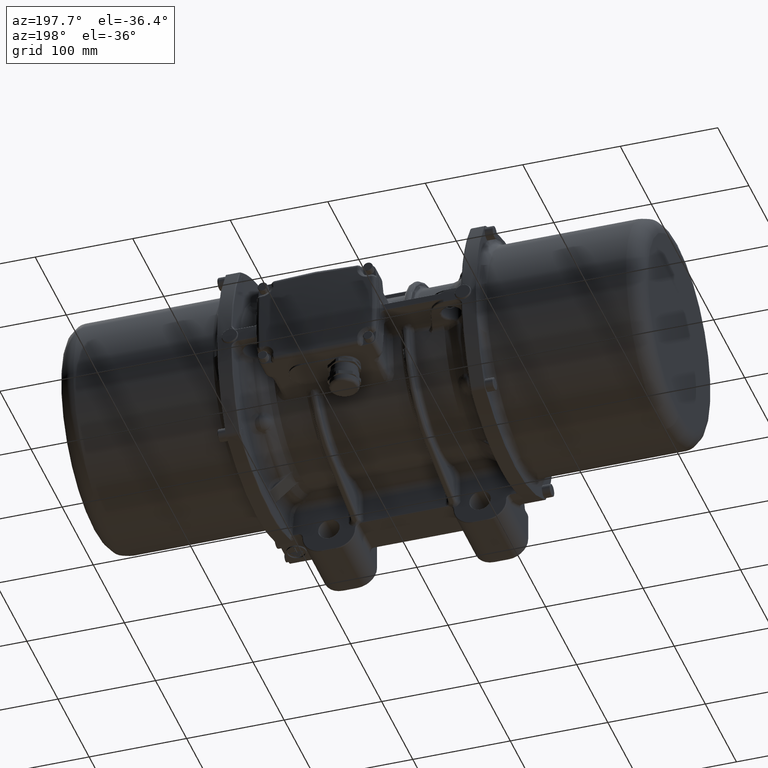
[diagram: clean part render]
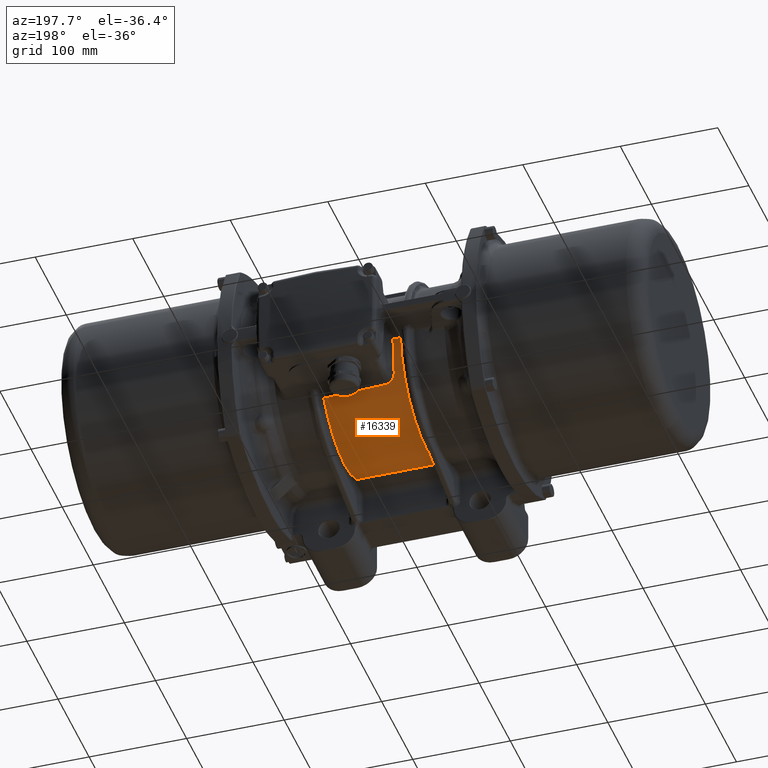
[diagram: same view with one face highlighted and labeled with its STEP entity id]
A machine part, auxiliary view. The second image highlights one B-rep face of the part: STEP entity #16339.
In plain terms, the highlighted cylindrical surface (partial cylindrical patch) has radius 85 mm, axis along (-1, -0, 0).
Its self-contained STEP definition (entity closure, byte-faithful):
#22 = FACE_OUTER_BOUND ( 'NONE', #86656, .T. ) ;
#2832 = CARTESIAN_POINT ( 'NONE',  ( 10.18343553623218200, 67.78974197960712900, -51.27914773793213500 ) ) ;
#2906 = VERTEX_POINT ( 'NONE', #56555 ) ;
#3301 = CARTESIAN_POINT ( 'NONE',  ( 36.65626816226830400, 67.67017360980612800, -51.43700835952419200 ) ) ;
#4397 = CARTESIAN_POINT ( 'NONE',  ( -42.00000000000000000, 2.830652379159914700E-010, -5.417949075492423100E-010 ) ) ;
#4665 = CARTESIAN_POINT ( 'NONE',  ( 7.527752827561331000, 67.83416215010944900, -51.22048678093944600 ) ) ;
#4985 = CARTESIAN_POINT ( 'NONE',  ( -32.38844504999999400, 74.70326170094387000, -40.55148198596950900 ) ) ;
#5434 = CARTESIAN_POINT ( 'NONE',  ( -30.14287114500000800, 71.54544900199999800, -45.89469439699999500 ) ) ;
#5499 = VECTOR ( 'NONE', #41479, 1000.000000000000000 ) ;
#5877 = CARTESIAN_POINT ( 'NONE',  ( -31.67957175800000500, 73.10252652699999500, -43.37505449499999300 ) ) ;
#6355 = CARTESIAN_POINT ( 'NONE',  ( -32.32756473099999500, 74.38669384200000000, -41.13465800000000200 ) ) ;
#7038 = EDGE_CURVE ( 'NONE', #93936, #72338, #30839, .T. ) ;
#7735 = CARTESIAN_POINT ( 'NONE',  ( -34.01401181292610000, 82.74155070506032000, -19.51610667945691100 ) ) ;
#9559 = CARTESIAN_POINT ( 'NONE',  ( -33.90272848024739000, 82.21438940699400200, -21.59409254125847300 ) ) ;
#10038 = CYLINDRICAL_SURFACE ( 'NONE', #84340, 84.99999999954383200 ) ;
#13613 = CARTESIAN_POINT ( 'NONE',  ( 10.47652214207446200, 67.78484325270552800, -51.28562368769664200 ) ) ;
#13739 = EDGE_CURVE ( 'NONE', #125535, #27281, #82179, .T. ) ;
#14081 = CARTESIAN_POINT ( 'NONE',  ( -3.358281747558900400, 68.10201339758390300, -50.86408479365256600 ) ) ;
#14983 = CARTESIAN_POINT ( 'NONE',  ( -6.145920619626206600, 68.18748043438780800, -50.74946498007519600 ) ) ;
#15634 = DIRECTION ( 'NONE',  ( 1.000000000000000000, 0.0000000000000000000, -0.0000000000000000000 ) ) ;
#15753 = CARTESIAN_POINT ( 'NONE',  ( -22.88448369900000000, 68.84543242199998800, -49.85287848299999100 ) ) ;
#16211 = CARTESIAN_POINT ( 'NONE',  ( -25.84765263900000000, 69.41536443500001500, -49.05644348299999500 ) ) ;
#16339 = ADVANCED_FACE ( 'NONE', ( #22 ), #10038, .T. ) ;
#17577 = EDGE_CURVE ( 'NONE', #93226, #93936, #40949, .T. ) ;
#17912 = VERTEX_POINT ( 'NONE', #87148 ) ;
#18773 = EDGE_CURVE ( 'NONE', #64168, #17912, #56395, .T. ) ;
#18780 = CARTESIAN_POINT ( 'NONE',  ( 42.00000000000000000, 2.830652379159914700E-010, -5.417949075492423100E-010 ) ) ;
#19261 = CARTESIAN_POINT ( 'NONE',  ( 42.00000000000000000, 8.845146837188622200E-010, -3.283588678737459100E-010 ) ) ;
#19842 = CARTESIAN_POINT ( 'NONE',  ( -32.90891703093009800, 77.37396894477505800, -35.30077366396736900 ) ) ;
#24233 = CARTESIAN_POINT ( 'NONE',  ( 3.519168112680476100, 67.92126990419704700, -51.10499847767423600 ) ) ;
#24700 = CARTESIAN_POINT ( 'NONE',  ( 41.99999999666408700, 67.74501460766585100, -51.33822193058750800 ) ) ;
#25161 = CARTESIAN_POINT ( 'NONE',  ( -5.642455864213274300, 68.17152837046370500, -50.77089225224765600 ) ) ;
#25619 = CARTESIAN_POINT ( 'NONE',  ( 9.963616175069120100, 67.79346275613397700, -51.27422886764176000 ) ) ;
#26819 = CARTESIAN_POINT ( 'NONE',  ( -30.33170296600000200, 71.69720022100001700, -45.65735479099999600 ) ) ;
#27281 = VERTEX_POINT ( 'NONE', #73848 ) ;
#27741 = CARTESIAN_POINT ( 'NONE',  ( -25.53340074500000200, 69.32716991600000300, -49.18091122700000300 ) ) ;
#27758 = DIRECTION ( 'NONE',  ( 1.000000000000000000, 0.0000000000000000000, -0.0000000000000000000 ) ) ;
#30058 = CARTESIAN_POINT ( 'NONE',  ( -34.08079022050649300, 83.05568393293776800, -18.13123029110487000 ) ) ;
#30839 = B_SPLINE_CURVE_WITH_KNOTS ( 'NONE', 3,
 ( #113601, #15753, #90339, #70716, #37586, #27741, #16211, #70256, #133689, #124322, #38973, #122523, #90778, #59972, #60433, #5434, #26819, #101481, #68899, #5877, #47887, #58596, #6355, #4985 ),
 .UNSPECIFIED., .F., .F.,
 ( 4, 2, 2, 2, 2, 2, 2, 2, 2, 2, 2, 4 ),
 ( 0.0000000000000000000, 0.1249999999999997600, 0.1874999999999992800, 0.2499999999999994200, 0.3749999999999992200, 0.4374999999999986700, 0.4999999999999989500, 0.5624999999999983300, 0.6249999999999955600, 0.7499999999999972200, 0.8749999999999984500, 1.000000000000000000 ),
 .UNSPECIFIED. ) ;
#34080 = ORIENTED_EDGE ( 'NONE', *, *, #7038, .F. ) ;
#34946 = CARTESIAN_POINT ( 'NONE',  ( -18.03135831589894500, 68.62640931575778300, -50.15432508562475500 ) ) ;
#36336 = CARTESIAN_POINT ( 'NONE',  ( 19.26599375099243600, 67.67099646385474900, -51.43606567247891100 ) ) ;
#37357 = CIRCLE ( 'NONE', #72323, 84.99999999954383200 ) ;
#37586 = CARTESIAN_POINT ( 'NONE',  ( -24.88991697099999800, 69.16934366300000600, -49.40263570800000500 ) ) ;
#38973 = CARTESIAN_POINT ( 'NONE',  ( -28.37583217599999900, 70.42059032400000300, -47.60249252300000200 ) ) ;
#40765 = CARTESIAN_POINT ( 'NONE',  ( -42.00000000000000000, 84.57393215393132400, -8.500000000007899500 ) ) ;
#40804 = CARTESIAN_POINT ( 'NONE',  ( -33.77128739273127400, 81.58820536630408100, -23.84518383961886600 ) ) ;
#40949 = B_SPLINE_CURVE_WITH_KNOTS ( 'NONE', 3,
 ( #24700, #3301, #56028, #36336, #89132, #130582, #120385, #13613, #2832, #120850, #25619, #67676, #111008, #121777, #77469, #109612, #78831, #4665, #24233, #45729, #56482, #77910, #14081, #109140, #98879, #25161, #47125, #88680, #99794, #57855, #99332, #132454, #14983, #66742, #56960, #34946, #78368, #98417 ),
 .UNSPECIFIED., .F., .F.,
 ( 4, 1, 1, 1, 1, 1, 1, 1, 1, 1, 1, 1, 2, 2, 2, 2, 2, 1, 1, 1, 1, 1, 1, 1, 2, 2, 2, 4 ),
 ( 0.0000000000000000000, 0.2500000000002479700, 0.3750000000003719200, 0.4375000000004339300, 0.4687500000004650200, 0.4843750000004805000, 0.4921875000004882800, 0.4960937500004921600, 0.4980468750004941000, 0.4990234375004950500, 0.4995117187504954900, 0.4997558593754957700, 0.4998779296879958800, 0.5000000000004960500, 0.6250000000003765900, 0.6875000000003168600, 0.7187500000002869900, 0.7343750000002721200, 0.7421875000002646800, 0.7460937500002610100, 0.7480468750002591300, 0.7490234375002582400, 0.7495117187502576800, 0.7497558593752574600, 0.7498779296877573500, 0.7500000000002572400, 0.8750000000001286700, 1.000000000000000000 ),
 .UNSPECIFIED. ) ;
#41479 = DIRECTION ( 'NONE',  ( 1.000000000000000000, -0.0000000000000000000, -0.0000000000000000000 ) ) ;
#43065 = B_SPLINE_CURVE_WITH_KNOTS ( 'NONE', 3,
 ( #125245, #61355, #135962, #30058, #7735, #9559, #60900, #40804, #71635, #115448, #73026, #51111, #126172, #104216, #105148, #62288, #19842, #94882, #72106 ),
 .UNSPECIFIED., .F., .F.,
 ( 4, 2, 2, 1, 1, 1, 1, 1, 2, 2, 2, 4 ),
 ( 0.0000000000000000000, 0.2500000000000005600, 0.3750000000000009400, 0.4375000000000014400, 0.4687500000000016700, 0.4843750000000015500, 0.4921875000000015500, 0.4960937500000018300, 0.4980468750000018300, 0.5000000000000017800, 0.7500000000000008900, 1.000000000000000000 ),
 .UNSPECIFIED. ) ;
#44605 = EDGE_CURVE ( 'NONE', #2906, #125535, #37357, .T. ) ;
#45729 = CARTESIAN_POINT ( 'NONE',  ( 1.934287062727649200, 67.95814667720135600, -51.05605613180794200 ) ) ;
#47125 = CARTESIAN_POINT ( 'NONE',  ( -5.895028358977150200, 68.17950637326436000, -50.76017765036174000 ) ) ;
#47887 = CARTESIAN_POINT ( 'NONE',  ( -31.89056275399999800, 73.42312329000002100, -42.83064705199998900 ) ) ;
#49272 = DIRECTION ( 'NONE',  ( 0.0000000000000000000, 0.0000000000000000000, -1.000000000000000000 ) ) ;
#51111 = CARTESIAN_POINT ( 'NONE',  ( -33.70057888614013600, 81.24959495968128900, -24.97005868722284900 ) ) ;
#52964 = EDGE_CURVE ( 'NONE', #64168, #93226, #73657, .T. ) ;
#53179 = CARTESIAN_POINT ( 'NONE',  ( 0.0000000000000000000, 84.57393215399999100, -8.500000000000000000 ) ) ;
#55755 = CIRCLE ( 'NONE', #123583, 84.99999999954383200 ) ;
#56028 = CARTESIAN_POINT ( 'NONE',  ( 28.63475829602360500, 67.62016136691573800, -51.50314241626691800 ) ) ;
#56395 = LINE ( 'NONE', #62604, #63036 ) ;
#56482 = CARTESIAN_POINT ( 'NONE',  ( -0.8166535233569703900, 68.03012457497125400, -50.96014950611031900 ) ) ;
#56555 = CARTESIAN_POINT ( 'NONE',  ( -42.00000000000000000, -2.035929756577715500E-014, -85.00000000004281700 ) ) ;
#56960 = CARTESIAN_POINT ( 'NONE',  ( -12.68742033291231400, 68.41213252456826400, -50.44641827695542700 ) ) ;
#57855 = CARTESIAN_POINT ( 'NONE',  ( -6.117428880751863800, 68.18657243143059100, -50.75068499591053200 ) ) ;
#58596 = CARTESIAN_POINT ( 'NONE',  ( -32.21545033000001000, 74.06718122500001300, -41.70697814500000800 ) ) ;
#59972 = CARTESIAN_POINT ( 'NONE',  ( -29.53540978500000200, 71.10523530299998600, -46.57371523000001200 ) ) ;
#60433 = CARTESIAN_POINT ( 'NONE',  ( -29.74502281899999500, 71.24973467400002400, -46.35244929299999900 ) ) ;
#60900 = CARTESIAN_POINT ( 'NONE',  ( -33.84430788358101000, 81.93682071085407900, -22.63325034438665300 ) ) ;
#61355 = CARTESIAN_POINT ( 'NONE',  ( -34.34798793055988100, 84.29960533498008600, -11.22951738544538000 ) ) ;
#62174 = DIRECTION ( 'NONE',  ( 0.0000000000000000000, 1.776356839400310400E-015, 1.000000000000000000 ) ) ;
#62288 = CARTESIAN_POINT ( 'NONE',  ( -33.34444361976343900, 79.53391564058999600, -30.12029140650523800 ) ) ;
#62604 = CARTESIAN_POINT ( 'NONE',  ( 0.0000000000000000000, -36.44627284800000700, -76.78977272699998500 ) ) ;
#62835 = ORIENTED_EDGE ( 'NONE', *, *, #52964, .F. ) ;
#63036 = VECTOR ( 'NONE', #106419, 1000.000000000000000 ) ;
#64168 = VERTEX_POINT ( 'NONE', #123814 ) ;
#66742 = CARTESIAN_POINT ( 'NONE',  ( -9.616984656455947800, 68.29814773385177800, -50.60076628172877400 ) ) ;
#67676 = CARTESIAN_POINT ( 'NONE',  ( 9.926979248145109100, 67.79408677659557700, -51.27340389656472300 ) ) ;
#68899 = CARTESIAN_POINT ( 'NONE',  ( -31.16529574500000200, 72.47021438700002700, -44.42344835600000200 ) ) ;
#70165 = EDGE_CURVE ( 'NONE', #27281, #72338, #43065, .T. ) ;
#70256 = CARTESIAN_POINT ( 'NONE',  ( -26.75647698299999900, 69.70151954300001800, -48.64985139600000300 ) ) ;
#70716 = CARTESIAN_POINT ( 'NONE',  ( -24.56320669399999800, 69.10023733799998500, -49.49916594500000900 ) ) ;
#71635 = CARTESIAN_POINT ( 'NONE',  ( -33.73356136528831000, 81.40766517402526900, -24.45095577078846800 ) ) ;
#72106 = CARTESIAN_POINT ( 'NONE',  ( -32.38844504999999400, 74.70326170094387000, -40.55148198596950900 ) ) ;
#72323 = AXIS2_PLACEMENT_3D ( 'NONE', #4397, #15634, #88865 ) ;
#72338 = VERTEX_POINT ( 'NONE', #129376 ) ;
#72453 = DIRECTION ( 'NONE',  ( 1.000000000000000000, 0.0000000000000000000, -0.0000000000000000000 ) ) ;
#73026 = CARTESIAN_POINT ( 'NONE',  ( -33.70473494007323000, 81.26952493765698200, -24.90517815340063000 ) ) ;
#73657 = CIRCLE ( 'NONE', #133836, 84.99999999980613600 ) ;
#73848 = CARTESIAN_POINT ( 'NONE',  ( -34.40743993686805900, 84.57393215406516200, -8.500000000038785000 ) ) ;
#77469 = CARTESIAN_POINT ( 'NONE',  ( 9.895576084645259800, 67.79462253456465200, -51.27269560707618000 ) ) ;
#77910 = CARTESIAN_POINT ( 'NONE',  ( -1.795905459763917900, 68.05690909746898900, -50.92440924447355100 ) ) ;
#78368 = CARTESIAN_POINT ( 'NONE',  ( -20.30486105730103200, 68.72672571618187500, -50.01658480646440800 ) ) ;
#78831 = CARTESIAN_POINT ( 'NONE',  ( 9.205521854444860700, 67.80640726378391000, -51.25711575994244400 ) ) ;
#79039 = ORIENTED_EDGE ( 'NONE', *, *, #133419, .T. ) ;
#80447 = CARTESIAN_POINT ( 'NONE',  ( -42.00000000000000000, 2.830652379159914700E-010, -5.417949075492423100E-010 ) ) ;
#82179 = LINE ( 'NONE', #53179, #5499 ) ;
#84340 = AXIS2_PLACEMENT_3D ( 'NONE', #18780, #102706, #93368 ) ;
#86656 = EDGE_LOOP ( 'NONE', ( #114608, #62835, #95159, #79039, #102450, #113685, #118739, #34080 ) ) ;
#87148 = CARTESIAN_POINT ( 'NONE',  ( -41.99999999999999300, -36.44627284802516700, -76.78977272705297700 ) ) ;
#88680 = CARTESIAN_POINT ( 'NONE',  ( -6.021954413505339300, 68.18353433255860800, -50.75476674852343000 ) ) ;
#88865 = DIRECTION ( 'NONE',  ( 0.0000000000000000000, 0.0000000000000000000, -1.000000000000000000 ) ) ;
#89132 = CARTESIAN_POINT ( 'NONE',  ( 14.57902867080684600, 67.72373984895659800, -51.36638508847558200 ) ) ;
#90339 = CARTESIAN_POINT ( 'NONE',  ( -23.56798630100000100, 68.92324837500000000, -49.74562042200000200 ) ) ;
#90778 = CARTESIAN_POINT ( 'NONE',  ( -29.09413852900000200, 70.82362186800000400, -47.00085130400000100 ) ) ;
#93226 = VERTEX_POINT ( 'NONE', #132898 ) ;
#93368 = DIRECTION ( 'NONE',  ( 0.0000000000000000000, 0.0000000000000000000, 1.000000000000000000 ) ) ;
#93936 = VERTEX_POINT ( 'NONE', #113582 ) ;
#94882 = CARTESIAN_POINT ( 'NONE',  ( -32.66283860581450700, 76.13006404085375300, -37.92305058520295800 ) ) ;
#95159 = ORIENTED_EDGE ( 'NONE', *, *, #18773, .T. ) ;
#98417 = CARTESIAN_POINT ( 'NONE',  ( -22.17899845300001300, 68.81296804894012100, -49.89764952695656300 ) ) ;
#98879 = CARTESIAN_POINT ( 'NONE',  ( -5.142428967740301900, 68.15588112840930500, -50.79189692044692400 ) ) ;
#99332 = CARTESIAN_POINT ( 'NONE',  ( -6.131088085481828800, 68.18700767213765300, -50.75010019987082900 ) ) ;
#99794 = CARTESIAN_POINT ( 'NONE',  ( -6.085577398274444300, 68.18555809717830100, -50.75204783027649600 ) ) ;
#101481 = CARTESIAN_POINT ( 'NONE',  ( -30.86170116700000300, 72.15777190899999000, -44.92867923000001400 ) ) ;
#102450 = ORIENTED_EDGE ( 'NONE', *, *, #44605, .T. ) ;
#102706 = DIRECTION ( 'NONE',  ( -1.000000000000000000, -0.0000000000000000000, 0.0000000000000000000 ) ) ;
#104216 = CARTESIAN_POINT ( 'NONE',  ( -33.69628366832045400, 81.22899485643958400, -25.03698892081748900 ) ) ;
#105148 = CARTESIAN_POINT ( 'NONE',  ( -33.53389178348119500, 80.45003193546976700, -27.56206273128198300 ) ) ;
#106419 = DIRECTION ( 'NONE',  ( -1.000000000000000000, 0.0000000000000000000, 0.0000000000000000000 ) ) ;
#109140 = CARTESIAN_POINT ( 'NONE',  ( -4.162844663967121100, 68.12579870126123200, -50.83224191874434400 ) ) ;
#109612 = CARTESIAN_POINT ( 'NONE',  ( 9.891010986305101200, 67.79470048736008900, -51.27259255064513600 ) ) ;
#111008 = CARTESIAN_POINT ( 'NONE',  ( 9.908660745382633200, 67.79439920366321800, -51.27299085822088600 ) ) ;
#113582 = CARTESIAN_POINT ( 'NONE',  ( -22.17899845300001300, 68.81296804894012100, -49.89764952695656300 ) ) ;
#113601 = CARTESIAN_POINT ( 'NONE',  ( -22.17899845300001300, 68.81296804894012100, -49.89764952695656300 ) ) ;
#113685 = ORIENTED_EDGE ( 'NONE', *, *, #13739, .T. ) ;
#114608 = ORIENTED_EDGE ( 'NONE', *, *, #17577, .F. ) ;
#115448 = CARTESIAN_POINT ( 'NONE',  ( -33.71439440606236100, 81.31583248291595100, -24.75378165843132200 ) ) ;
#118739 = ORIENTED_EDGE ( 'NONE', *, *, #70165, .T. ) ;
#120385 = CARTESIAN_POINT ( 'NONE',  ( 11.06267518382947300, 67.77525950595946800, -51.29829260437741600 ) ) ;
#120850 = CARTESIAN_POINT ( 'NONE',  ( 10.03688971450396200, 67.79221805026027400, -51.27587438741863200 ) ) ;
#121777 = CARTESIAN_POINT ( 'NONE',  ( 9.900809950063061700, 67.79453319029545400, -51.27281372332868900 ) ) ;
#122523 = CARTESIAN_POINT ( 'NONE',  ( -28.86248429499999800, 70.68650561799999800, -47.20672366800000200 ) ) ;
#123583 = AXIS2_PLACEMENT_3D ( 'NONE', #80447, #27758, #49272 ) ;
#123814 = CARTESIAN_POINT ( 'NONE',  ( 41.99999999999999300, -36.44627284799288700, -76.78977272710677900 ) ) ;
#124322 = CARTESIAN_POINT ( 'NONE',  ( -28.11963308400000000, 70.29125386400002600, -47.79317034300001400 ) ) ;
#125245 = CARTESIAN_POINT ( 'NONE',  ( -34.40743993686805900, 84.57393215406516200, -8.500000000038785000 ) ) ;
#125535 = VERTEX_POINT ( 'NONE', #40765 ) ;
#126172 = CARTESIAN_POINT ( 'NONE',  ( -33.69780456511922000, 81.23628965961557900, -25.01331154195084500 ) ) ;
#129376 = CARTESIAN_POINT ( 'NONE',  ( -32.38844504999999400, 74.70326170094387000, -40.55148198596950900 ) ) ;
#130582 = CARTESIAN_POINT ( 'NONE',  ( 12.23490058967669300, 67.75694676873246200, -51.32249867327745100 ) ) ;
#132454 = CARTESIAN_POINT ( 'NONE',  ( -6.140196126284240400, 68.18729794957202700, -50.74971017481769300 ) ) ;
#132898 = CARTESIAN_POINT ( 'NONE',  ( 41.99999999666408700, 67.74501460766585100, -51.33822193058750800 ) ) ;
#133419 = EDGE_CURVE ( 'NONE', #17912, #2906, #55755, .T. ) ;
#133689 = CARTESIAN_POINT ( 'NONE',  ( -27.32310713400000100, 69.92223162999999900, -48.33292386000000100 ) ) ;
#133836 = AXIS2_PLACEMENT_3D ( 'NONE', #19261, #72453, #62174 ) ;
#135962 = CARTESIAN_POINT ( 'NONE',  ( -34.25889400063150000, 83.88919547366992900, -13.98411472198302100 ) ) ;